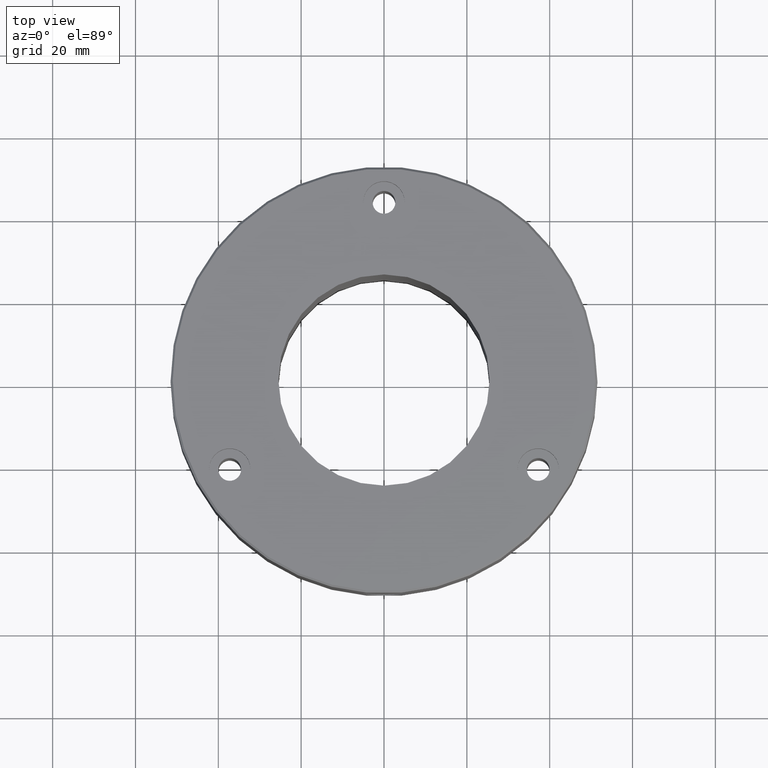
[diagram: clean part render]
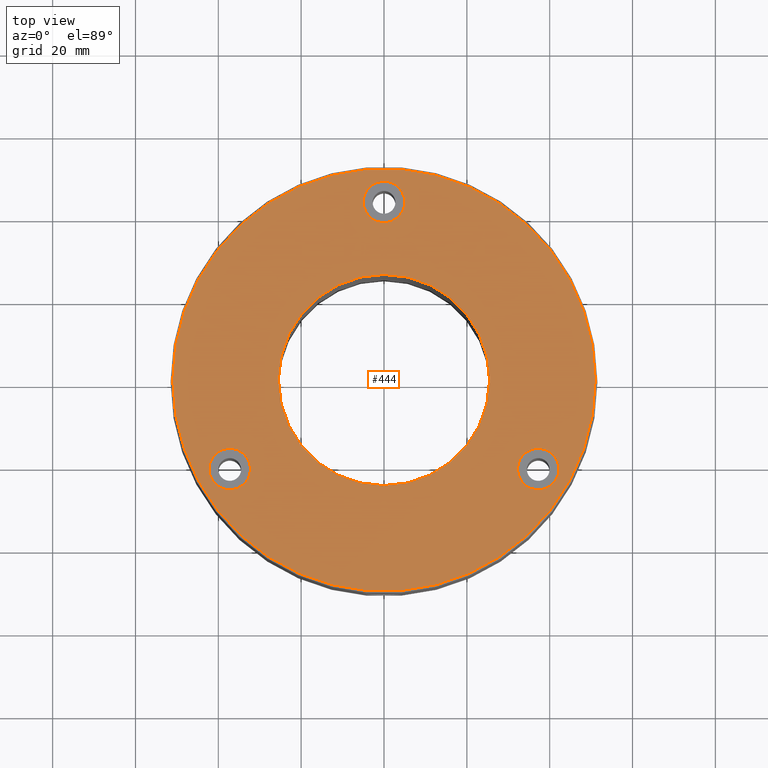
[diagram: same view with one face highlighted and labeled with its STEP entity id]
A machine part, top view. The second image highlights one B-rep face of the part: STEP entity #444.
In plain terms, the highlighted planar face has unit normal (0, -0, 1).
Its self-contained STEP definition (entity closure, byte-faithful):
#17 = AXIS2_PLACEMENT_3D ( 'NONE', #1184, #123, #1011 ) ;
#44 = ORIENTED_EDGE ( 'NONE', *, *, #151, .T. ) ;
#59 = VERTEX_POINT ( 'NONE', #676 ) ;
#80 = CARTESIAN_POINT ( 'NONE',  ( 0.000000000000000000, 43.00000000000000000, 0.000000000000000000 ) ) ;
#123 = DIRECTION ( 'NONE',  ( 0.000000000000000000, 0.000000000000000000, -1.000000000000000000 ) ) ;
#128 = ORIENTED_EDGE ( 'NONE', *, *, #555, .F. ) ;
#129 = CARTESIAN_POINT ( 'NONE',  ( 0.000000000000000000, 0.000000000000000000, 0.000000000000000000 ) ) ;
#145 = CARTESIAN_POINT ( 'NONE',  ( -37.23909236273090073, -21.49999999999991118, 0.000000000000000000 ) ) ;
#151 = EDGE_CURVE ( 'NONE', #751, #1007, #293, .T. ) ;
#153 = DIRECTION ( 'NONE',  ( -0.000000000000000000, -0.000000000000000000, 1.000000000000000000 ) ) ;
#155 = CARTESIAN_POINT ( 'NONE',  ( 0.000000000000000000, 0.000000000000000000, 0.000000000000000000 ) ) ;
#181 = AXIS2_PLACEMENT_3D ( 'NONE', #573, #1249, #1064 ) ;
#183 = CARTESIAN_POINT ( 'NONE',  ( -51.00000000000001421, 0.000000000000000000, 0.000000000000000000 ) ) ;
#204 = ORIENTED_EDGE ( 'NONE', *, *, #881, .T. ) ;
#248 = DIRECTION ( 'NONE',  ( -0.000000000000000000, -0.000000000000000000, 1.000000000000000000 ) ) ;
#258 = CIRCLE ( 'NONE', #474, 5.000000000000000888 ) ;
#266 = CARTESIAN_POINT ( 'NONE',  ( 37.23909236273076573, -21.50000000000015987, 0.000000000000000000 ) ) ;
#277 = AXIS2_PLACEMENT_3D ( 'NONE', #129, #153, #879 ) ;
#293 = CIRCLE ( 'NONE', #277, 51.00000000000001421 ) ;
#298 = EDGE_CURVE ( 'NONE', #1218, #558, #664, .T. ) ;
#344 = EDGE_LOOP ( 'NONE', ( #44, #451 ) ) ;
#345 = DIRECTION ( 'NONE',  ( 1.000000000000000000, 0.000000000000000000, 0.000000000000000000 ) ) ;
#350 = CARTESIAN_POINT ( 'NONE',  ( -37.23909236273090073, -21.49999999999991118, 0.000000000000000000 ) ) ;
#352 = EDGE_CURVE ( 'NONE', #59, #1197, #1086, .T. ) ;
#390 = FACE_BOUND ( 'NONE', #1145, .T. ) ;
#423 = DIRECTION ( 'NONE',  ( 1.000000000000000000, 0.000000000000000000, 0.000000000000000000 ) ) ;
#428 = EDGE_CURVE ( 'NONE', #913, #997, #535, .T. ) ;
#444 = ADVANCED_FACE ( 'NONE', ( #1081, #390, #975, #615, #778 ), #1094, .T. ) ;
#451 = ORIENTED_EDGE ( 'NONE', *, *, #915, .T. ) ;
#452 = DIRECTION ( 'NONE',  ( -0.000000000000000000, -0.000000000000000000, 1.000000000000000000 ) ) ;
#473 = AXIS2_PLACEMENT_3D ( 'NONE', #1227, #951, #1221 ) ;
#474 = AXIS2_PLACEMENT_3D ( 'NONE', #80, #248, #1139 ) ;
#483 = ORIENTED_EDGE ( 'NONE', *, *, #989, .F. ) ;
#492 = ORIENTED_EDGE ( 'NONE', *, *, #637, .F. ) ;
#495 = CARTESIAN_POINT ( 'NONE',  ( -42.23909236273090784, -21.49999999999991118, 0.000000000000000000 ) ) ;
#508 = AXIS2_PLACEMENT_3D ( 'NONE', #145, #1200, #987 ) ;
#521 = VERTEX_POINT ( 'NONE', #495 ) ;
#535 = CIRCLE ( 'NONE', #1206, 5.000000000000000888 ) ;
#536 = CARTESIAN_POINT ( 'NONE',  ( -32.23909236273090073, -21.49999999999991118, 0.000000000000000000 ) ) ;
#550 = ORIENTED_EDGE ( 'NONE', *, *, #352, .F. ) ;
#552 = CARTESIAN_POINT ( 'NONE',  ( 51.00000000000001421, 6.276314845630186598E-15, 0.000000000000000000 ) ) ;
#555 = EDGE_CURVE ( 'NONE', #1041, #521, #777, .T. ) ;
#558 = VERTEX_POINT ( 'NONE', #1092 ) ;
#573 = CARTESIAN_POINT ( 'NONE',  ( 0.000000000000000000, 0.000000000000000000, 0.000000000000000000 ) ) ;
#615 = FACE_BOUND ( 'NONE', #651, .T. ) ;
#621 = EDGE_CURVE ( 'NONE', #1197, #59, #763, .T. ) ;
#636 = CARTESIAN_POINT ( 'NONE',  ( -5.000000000000000888, 43.00000000000000000, 0.000000000000000000 ) ) ;
#637 = EDGE_CURVE ( 'NONE', #521, #1041, #1129, .T. ) ;
#638 = EDGE_LOOP ( 'NONE', ( #832, #483 ) ) ;
#643 = AXIS2_PLACEMENT_3D ( 'NONE', #350, #452, #345 ) ;
#646 = DIRECTION ( 'NONE',  ( 1.000000000000000000, 0.000000000000000000, 0.000000000000000000 ) ) ;
#651 = EDGE_LOOP ( 'NONE', ( #890, #204 ) ) ;
#664 = CIRCLE ( 'NONE', #181, 25.50000000000000000 ) ;
#676 = CARTESIAN_POINT ( 'NONE',  ( 42.23909236273076573, -21.50000000000015987, 0.000000000000000000 ) ) ;
#689 = DIRECTION ( 'NONE',  ( 1.000000000000000000, 0.000000000000000000, 0.000000000000000000 ) ) ;
#718 = DIRECTION ( 'NONE',  ( -0.000000000000000000, -0.000000000000000000, 1.000000000000000000 ) ) ;
#727 = AXIS2_PLACEMENT_3D ( 'NONE', #155, #718, #423 ) ;
#751 = VERTEX_POINT ( 'NONE', #183 ) ;
#763 = CIRCLE ( 'NONE', #473, 5.000000000000004441 ) ;
#777 = CIRCLE ( 'NONE', #508, 5.000000000000004441 ) ;
#778 = FACE_OUTER_BOUND ( 'NONE', #344, .T. ) ;
#779 = CIRCLE ( 'NONE', #727, 51.00000000000001421 ) ;
#785 = DIRECTION ( 'NONE',  ( 0.000000000000000000, -0.000000000000000000, 1.000000000000000000 ) ) ;
#800 = CARTESIAN_POINT ( 'NONE',  ( 5.000000000000000888, 43.00000000000000000, 0.000000000000000000 ) ) ;
#832 = ORIENTED_EDGE ( 'NONE', *, *, #428, .F. ) ;
#837 = AXIS2_PLACEMENT_3D ( 'NONE', #1169, #785, #1090 ) ;
#859 = CARTESIAN_POINT ( 'NONE',  ( -25.50000000000000000, 0.000000000000000000, 0.000000000000000000 ) ) ;
#879 = DIRECTION ( 'NONE',  ( 1.000000000000000000, 0.000000000000000000, 0.000000000000000000 ) ) ;
#881 = EDGE_CURVE ( 'NONE', #558, #1218, #1149, .T. ) ;
#890 = ORIENTED_EDGE ( 'NONE', *, *, #298, .T. ) ;
#913 = VERTEX_POINT ( 'NONE', #800 ) ;
#915 = EDGE_CURVE ( 'NONE', #1007, #751, #779, .T. ) ;
#951 = DIRECTION ( 'NONE',  ( -0.000000000000000000, -0.000000000000000000, 1.000000000000000000 ) ) ;
#975 = FACE_BOUND ( 'NONE', #638, .T. ) ;
#979 = AXIS2_PLACEMENT_3D ( 'NONE', #266, #1108, #646 ) ;
#987 = DIRECTION ( 'NONE',  ( 1.000000000000000000, 0.000000000000000000, 0.000000000000000000 ) ) ;
#989 = EDGE_CURVE ( 'NONE', #997, #913, #258, .T. ) ;
#997 = VERTEX_POINT ( 'NONE', #636 ) ;
#1007 = VERTEX_POINT ( 'NONE', #552 ) ;
#1011 = DIRECTION ( 'NONE',  ( -1.000000000000000000, 0.000000000000000000, 0.000000000000000000 ) ) ;
#1041 = VERTEX_POINT ( 'NONE', #536 ) ;
#1060 = CARTESIAN_POINT ( 'NONE',  ( 32.23909236273075862, -21.50000000000015987, 0.000000000000000000 ) ) ;
#1064 = DIRECTION ( 'NONE',  ( -1.000000000000000000, 0.000000000000000000, 0.000000000000000000 ) ) ;
#1081 = FACE_BOUND ( 'NONE', #1223, .T. ) ;
#1086 = CIRCLE ( 'NONE', #979, 5.000000000000004441 ) ;
#1090 = DIRECTION ( 'NONE',  ( 1.000000000000000000, 0.000000000000000000, 0.000000000000000000 ) ) ;
#1092 = CARTESIAN_POINT ( 'NONE',  ( 25.50000000000000000, 3.122849337825750222E-15, 0.000000000000000000 ) ) ;
#1094 = PLANE ( 'NONE',  #837 ) ;
#1108 = DIRECTION ( 'NONE',  ( -0.000000000000000000, -0.000000000000000000, 1.000000000000000000 ) ) ;
#1129 = CIRCLE ( 'NONE', #643, 5.000000000000004441 ) ;
#1139 = DIRECTION ( 'NONE',  ( 1.000000000000000000, 0.000000000000000000, 0.000000000000000000 ) ) ;
#1145 = EDGE_LOOP ( 'NONE', ( #550, #1215 ) ) ;
#1149 = CIRCLE ( 'NONE', #17, 25.50000000000000000 ) ;
#1169 = CARTESIAN_POINT ( 'NONE',  ( 0.000000000000000000, 0.000000000000000000, 0.000000000000000000 ) ) ;
#1177 = CARTESIAN_POINT ( 'NONE',  ( 0.000000000000000000, 43.00000000000000000, 0.000000000000000000 ) ) ;
#1184 = CARTESIAN_POINT ( 'NONE',  ( 0.000000000000000000, 0.000000000000000000, 0.000000000000000000 ) ) ;
#1189 = DIRECTION ( 'NONE',  ( -0.000000000000000000, -0.000000000000000000, 1.000000000000000000 ) ) ;
#1197 = VERTEX_POINT ( 'NONE', #1060 ) ;
#1200 = DIRECTION ( 'NONE',  ( -0.000000000000000000, -0.000000000000000000, 1.000000000000000000 ) ) ;
#1206 = AXIS2_PLACEMENT_3D ( 'NONE', #1177, #1189, #689 ) ;
#1215 = ORIENTED_EDGE ( 'NONE', *, *, #621, .F. ) ;
#1218 = VERTEX_POINT ( 'NONE', #859 ) ;
#1221 = DIRECTION ( 'NONE',  ( 1.000000000000000000, 0.000000000000000000, 0.000000000000000000 ) ) ;
#1223 = EDGE_LOOP ( 'NONE', ( #128, #492 ) ) ;
#1227 = CARTESIAN_POINT ( 'NONE',  ( 37.23909236273076573, -21.50000000000015987, 0.000000000000000000 ) ) ;
#1249 = DIRECTION ( 'NONE',  ( 0.000000000000000000, 0.000000000000000000, -1.000000000000000000 ) ) ;